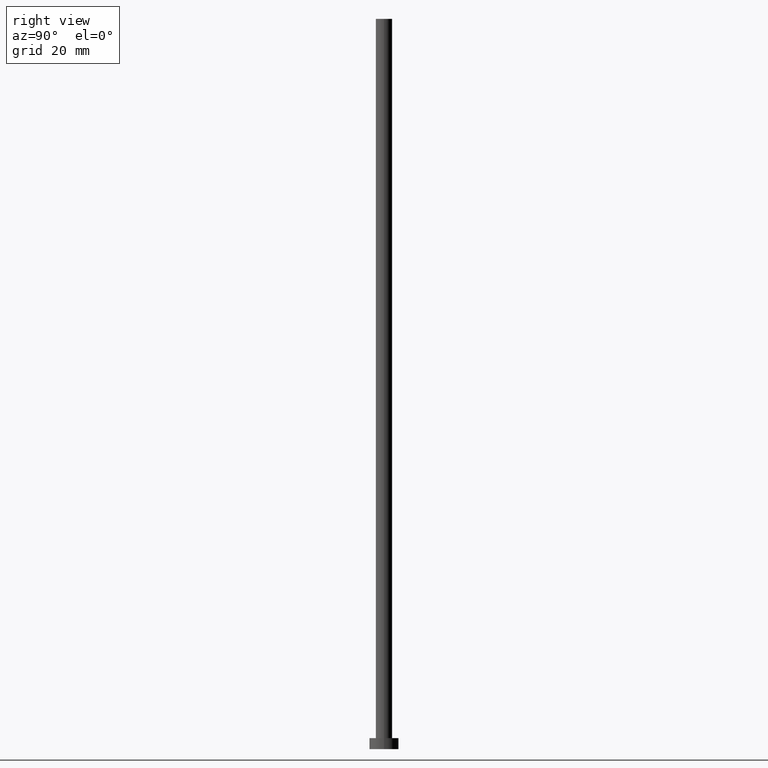
[diagram: clean part render]
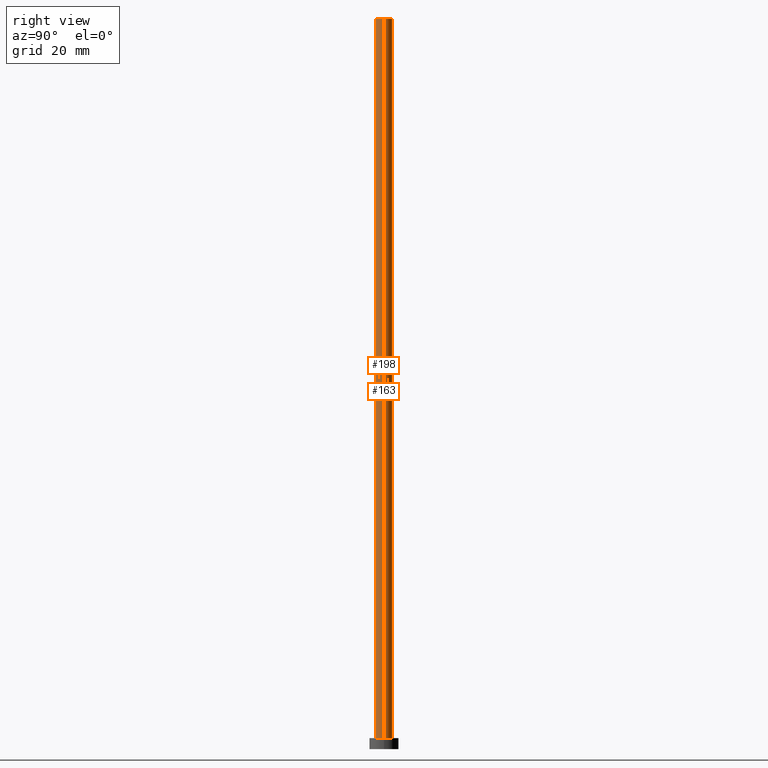
[diagram: same view with one multi-face feature highlighted, each face labeled with its STEP entity id]
A machine part, right view. The highlighted faces form ONE feature: a constant-radius fillet chain: 2 tangent blend faces with common blend radius 2.25 mm. The faces share edges in the B-rep.
Their STEP definitions:
[1] entity #198 (Cylinder):
#2 = DIRECTION ( 'NONE',  ( -0.000000000000000000, -0.000000000000000000, -1.000000000000000000 ) ) ;
#7 = DIRECTION ( 'NONE',  ( -0.000000000000000000, -0.000000000000000000, -1.000000000000000000 ) ) ;
#9 = DIRECTION ( 'NONE',  ( -0.000000000000000000, -0.000000000000000000, -1.000000000000000000 ) ) ;
#15 = VECTOR ( 'NONE', #2, 1000.000000000000000 ) ;
#17 = ORIENTED_EDGE ( 'NONE', *, *, #178, .T. ) ;
#19 = CARTESIAN_POINT ( 'NONE',  ( -2.250000000000000000, 0.000000000000000000, 200.0000000000000000 ) ) ;
#21 = DIRECTION ( 'NONE',  ( 0.000000000000000000, 0.000000000000000000, 1.000000000000000000 ) ) ;
#24 = VERTEX_POINT ( 'NONE', #70 ) ;
#37 = AXIS2_PLACEMENT_3D ( 'NONE', #41, #86, #124 ) ;
#39 = LINE ( 'NONE', #100, #138 ) ;
#41 = CARTESIAN_POINT ( 'NONE',  ( 0.000000000000000000, 0.000000000000000000, 200.0000000000000000 ) ) ;
#42 = CARTESIAN_POINT ( 'NONE',  ( -2.250000000000000000, 0.000000000000000000, 200.0000000000000000 ) ) ;
#45 = AXIS2_PLACEMENT_3D ( 'NONE', #194, #21, #142 ) ;
#65 = EDGE_CURVE ( 'NONE', #139, #24, #94, .T. ) ;
#66 = AXIS2_PLACEMENT_3D ( 'NONE', #82, #7, #159 ) ;
#70 = CARTESIAN_POINT ( 'NONE',  ( -2.250000000000000000, 0.000000000000000000, 3.000000000000000000 ) ) ;
#76 = ORIENTED_EDGE ( 'NONE', *, *, #225, .F. ) ;
#77 = VERTEX_POINT ( 'NONE', #238 ) ;
#82 = CARTESIAN_POINT ( 'NONE',  ( 0.000000000000000000, 0.000000000000000000, 200.0000000000000000 ) ) ;
#86 = DIRECTION ( 'NONE',  ( 0.000000000000000000, 0.000000000000000000, 1.000000000000000000 ) ) ;
#94 = LINE ( 'NONE', #19, #15 ) ;
#100 = CARTESIAN_POINT ( 'NONE',  ( 2.250000000000000000, 2.755455298081544285E-16, 200.0000000000000000 ) ) ;
#124 = DIRECTION ( 'NONE',  ( 1.000000000000000000, 0.000000000000000000, 0.000000000000000000 ) ) ;
#138 = VECTOR ( 'NONE', #9, 1000.000000000000000 ) ;
#139 = VERTEX_POINT ( 'NONE', #42 ) ;
#140 = CYLINDRICAL_SURFACE ( 'NONE', #66, 2.250000000000000000 ) ;
#142 = DIRECTION ( 'NONE',  ( 1.000000000000000000, 0.000000000000000000, 0.000000000000000000 ) ) ;
#159 = DIRECTION ( 'NONE',  ( -1.000000000000000000, 0.000000000000000000, 0.000000000000000000 ) ) ;
#178 = EDGE_CURVE ( 'NONE', #24, #249, #212, .T. ) ;
#181 = EDGE_CURVE ( 'NONE', #77, #249, #39, .T. ) ;
#182 = FACE_OUTER_BOUND ( 'NONE', #237, .T. ) ;
#185 = ORIENTED_EDGE ( 'NONE', *, *, #181, .F. ) ;
#194 = CARTESIAN_POINT ( 'NONE',  ( 0.000000000000000000, 0.000000000000000000, 3.000000000000000000 ) ) ;
#198 = ADVANCED_FACE ( 'NONE', ( #182 ), #140, .T. ) ;
#212 = CIRCLE ( 'NONE', #45, 2.250000000000000000 ) ;
#217 = ORIENTED_EDGE ( 'NONE', *, *, #65, .T. ) ;
#225 = EDGE_CURVE ( 'NONE', #139, #77, #253, .T. ) ;
#237 = EDGE_LOOP ( 'NONE', ( #185, #76, #217, #17 ) ) ;
#238 = CARTESIAN_POINT ( 'NONE',  ( 2.250000000000000000, 2.755455298081544285E-16, 200.0000000000000000 ) ) ;
#243 = CARTESIAN_POINT ( 'NONE',  ( 2.250000000000000000, 2.755455298081544285E-16, 3.000000000000000000 ) ) ;
#249 = VERTEX_POINT ( 'NONE', #243 ) ;
#253 = CIRCLE ( 'NONE', #37, 2.250000000000000000 ) ;
[2] entity #163 (Cylinder):
#2 = DIRECTION ( 'NONE',  ( -0.000000000000000000, -0.000000000000000000, -1.000000000000000000 ) ) ;
#9 = DIRECTION ( 'NONE',  ( -0.000000000000000000, -0.000000000000000000, -1.000000000000000000 ) ) ;
#10 = DIRECTION ( 'NONE',  ( 1.000000000000000000, 0.000000000000000000, 0.000000000000000000 ) ) ;
#14 = EDGE_CURVE ( 'NONE', #249, #24, #155, .T. ) ;
#15 = VECTOR ( 'NONE', #2, 1000.000000000000000 ) ;
#19 = CARTESIAN_POINT ( 'NONE',  ( -2.250000000000000000, 0.000000000000000000, 200.0000000000000000 ) ) ;
#24 = VERTEX_POINT ( 'NONE', #70 ) ;
#31 = EDGE_CURVE ( 'NONE', #77, #139, #210, .T. ) ;
#35 = ORIENTED_EDGE ( 'NONE', *, *, #65, .F. ) ;
#39 = LINE ( 'NONE', #100, #138 ) ;
#42 = CARTESIAN_POINT ( 'NONE',  ( -2.250000000000000000, 0.000000000000000000, 200.0000000000000000 ) ) ;
#44 = EDGE_LOOP ( 'NONE', ( #160, #58, #166, #35 ) ) ;
#46 = DIRECTION ( 'NONE',  ( 1.000000000000000000, 0.000000000000000000, 0.000000000000000000 ) ) ;
#58 = ORIENTED_EDGE ( 'NONE', *, *, #181, .T. ) ;
#59 = AXIS2_PLACEMENT_3D ( 'NONE', #91, #248, #10 ) ;
#65 = EDGE_CURVE ( 'NONE', #139, #24, #94, .T. ) ;
#67 = CARTESIAN_POINT ( 'NONE',  ( 0.000000000000000000, 0.000000000000000000, 200.0000000000000000 ) ) ;
#70 = CARTESIAN_POINT ( 'NONE',  ( -2.250000000000000000, 0.000000000000000000, 3.000000000000000000 ) ) ;
#77 = VERTEX_POINT ( 'NONE', #238 ) ;
#91 = CARTESIAN_POINT ( 'NONE',  ( 0.000000000000000000, 0.000000000000000000, 3.000000000000000000 ) ) ;
#94 = LINE ( 'NONE', #19, #15 ) ;
#100 = CARTESIAN_POINT ( 'NONE',  ( 2.250000000000000000, 2.755455298081544285E-16, 200.0000000000000000 ) ) ;
#103 = AXIS2_PLACEMENT_3D ( 'NONE', #129, #165, #46 ) ;
#121 = CYLINDRICAL_SURFACE ( 'NONE', #227, 2.250000000000000000 ) ;
#129 = CARTESIAN_POINT ( 'NONE',  ( 0.000000000000000000, 0.000000000000000000, 200.0000000000000000 ) ) ;
#138 = VECTOR ( 'NONE', #9, 1000.000000000000000 ) ;
#139 = VERTEX_POINT ( 'NONE', #42 ) ;
#155 = CIRCLE ( 'NONE', #59, 2.250000000000000000 ) ;
#160 = ORIENTED_EDGE ( 'NONE', *, *, #31, .F. ) ;
#161 = DIRECTION ( 'NONE',  ( -1.000000000000000000, 0.000000000000000000, 0.000000000000000000 ) ) ;
#163 = ADVANCED_FACE ( 'NONE', ( #220 ), #121, .T. ) ;
#165 = DIRECTION ( 'NONE',  ( 0.000000000000000000, 0.000000000000000000, 1.000000000000000000 ) ) ;
#166 = ORIENTED_EDGE ( 'NONE', *, *, #14, .T. ) ;
#181 = EDGE_CURVE ( 'NONE', #77, #249, #39, .T. ) ;
#196 = DIRECTION ( 'NONE',  ( -0.000000000000000000, -0.000000000000000000, -1.000000000000000000 ) ) ;
#210 = CIRCLE ( 'NONE', #103, 2.250000000000000000 ) ;
#220 = FACE_OUTER_BOUND ( 'NONE', #44, .T. ) ;
#227 = AXIS2_PLACEMENT_3D ( 'NONE', #67, #196, #161 ) ;
#238 = CARTESIAN_POINT ( 'NONE',  ( 2.250000000000000000, 2.755455298081544285E-16, 200.0000000000000000 ) ) ;
#243 = CARTESIAN_POINT ( 'NONE',  ( 2.250000000000000000, 2.755455298081544285E-16, 3.000000000000000000 ) ) ;
#248 = DIRECTION ( 'NONE',  ( 0.000000000000000000, 0.000000000000000000, 1.000000000000000000 ) ) ;
#249 = VERTEX_POINT ( 'NONE', #243 ) ;